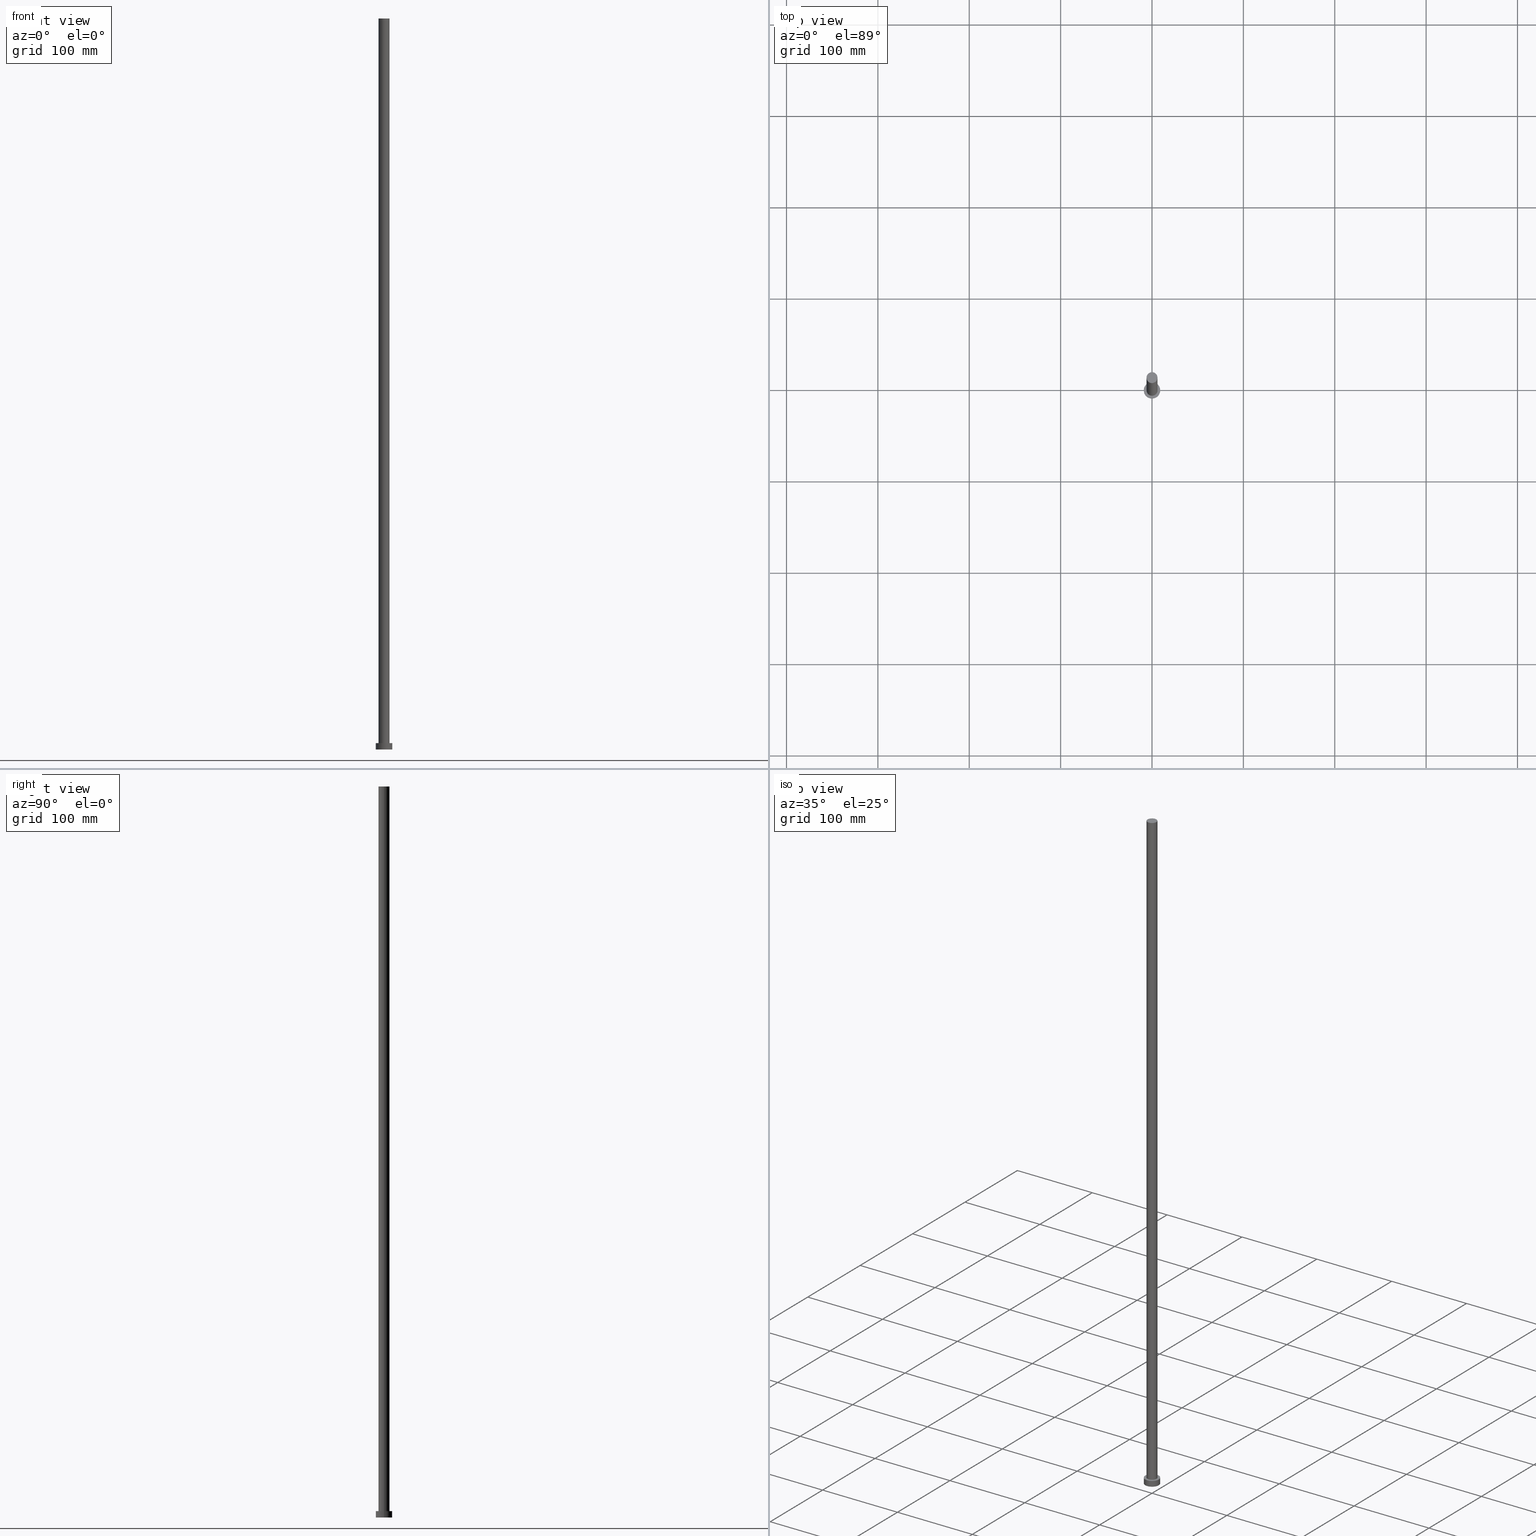
[diagram: canonical four-view strip — front | top / right | iso, engineering-drawing reading convention]
A machine part, canonical four-view strip (front | top / right | iso — engineering-drawing reading convention). The complete STEP part file that produces these views, byte-faithful:
ISO-10303-21;
HEADER;
FILE_DESCRIPTION (( 'STEP AP203' ),
    '1' );
FILE_NAME ('a4fc.STEP',
    '2023-02-12T11:04:41',
    ( '' ),
    ( '' ),
    'SwSTEP 2.0',
    'SolidWorks 2019',
    '' );
FILE_SCHEMA (( 'CONFIG_CONTROL_DESIGN' ));
ENDSEC;

DATA;
#1 = APPLICATION_PROTOCOL_DEFINITION ( 'international standard', 'config_control_design', 1994, #240 ) ;
#2 =( NAMED_UNIT ( * ) PLANE_ANGLE_UNIT ( ) SI_UNIT ( $, .RADIAN. ) );
#3 = ADVANCED_FACE ( 'NONE', ( #243 ), #124, .F. ) ;
#4 = UNCERTAINTY_MEASURE_WITH_UNIT (LENGTH_MEASURE( 1.000000000000000082E-05 ), #216, 'distance_accuracy_value', 'NONE');
#5 = DATE_AND_TIME ( #156, #23 ) ;
#6 = APPROVAL_DATE_TIME ( #178, #241 ) ;
#7 = ADVANCED_BREP_SHAPE_REPRESENTATION ( 'a4fc', ( #141, #84 ), #105 ) ;
#8 = CALENDAR_DATE ( 2023, 12, 2 ) ;
#9 = ORIENTED_EDGE ( 'NONE', *, *, #245, .T. ) ;
#10 = VECTOR ( 'NONE', #161, 1000.000000000000000 ) ;
#11 = VERTEX_POINT ( 'NONE', #95 ) ;
#12 = DIRECTION ( 'NONE',  ( 1.000000000000000000, 0.000000000000000000, 0.000000000000000000 ) ) ;
#13 = ORIENTED_EDGE ( 'NONE', *, *, #152, .F. ) ;
#14 = FACE_OUTER_BOUND ( 'NONE', #226, .T. ) ;
#15 = VERTEX_POINT ( 'NONE', #235 ) ;
#16 = CIRCLE ( 'NONE', #36, 9.000000000000000000 ) ;
#17 = LINE ( 'NONE', #247, #10 ) ;
#18 = VERTEX_POINT ( 'NONE', #91 ) ;
#19 = PERSON_AND_ORGANIZATION ( #75, #52 ) ;
#20 = CARTESIAN_POINT ( 'NONE',  ( -6.000000000000000888, 0.000000000000000000, 7.000000000000000000 ) ) ;
#21 = CLOSED_SHELL ( 'NONE', ( #186, #99, #196, #73, #3, #143, #106 ) ) ;
#22 = EDGE_CURVE ( 'NONE', #128, #83, #72, .T. ) ;
#23 = LOCAL_TIME ( 12, 4, 41.00000000000000000, #42 ) ;
#24 = MECHANICAL_CONTEXT ( 'NONE', #240, 'mechanical' ) ;
#25 = LINE ( 'NONE', #154, #254 ) ;
#26 = DIRECTION ( 'NONE',  ( 1.000000000000000000, 0.000000000000000000, -0.000000000000000000 ) ) ;
#27 = CYLINDRICAL_SURFACE ( 'NONE', #165, 9.000000000000000000 ) ;
#28 = AXIS2_PLACEMENT_3D ( 'NONE', #211, #255, #133 ) ;
#29 = APPROVAL_STATUS ( 'not_yet_approved' ) ;
#30 = SECURITY_CLASSIFICATION_LEVEL ( 'unclassified' ) ;
#31 = ORIENTED_EDGE ( 'NONE', *, *, #22, .T. ) ;
#32 = CIRCLE ( 'NONE', #28, 6.000000000000000888 ) ;
#33 = APPROVAL_PERSON_ORGANIZATION ( #57, #113, #61 ) ;
#34 = ORIENTED_EDGE ( 'NONE', *, *, #22, .F. ) ;
#35 = CC_DESIGN_DATE_AND_TIME_ASSIGNMENT ( #5, #195, ( #43 ) ) ;
#36 = AXIS2_PLACEMENT_3D ( 'NONE', #221, #82, #79 ) ;
#37 = DIRECTION ( 'NONE',  ( 1.000000000000000000, 0.000000000000000000, 0.000000000000000000 ) ) ;
#38 = DIRECTION ( 'NONE',  ( 0.000000000000000000, 0.000000000000000000, 1.000000000000000000 ) ) ;
#39 = COORDINATED_UNIVERSAL_TIME_OFFSET ( 1, 0, .AHEAD. ) ;
#40 = DIRECTION ( 'NONE',  ( 0.000000000000000000, 0.000000000000000000, 1.000000000000000000 ) ) ;
#41 = PLANE ( 'NONE',  #252 ) ;
#42 = COORDINATED_UNIVERSAL_TIME_OFFSET ( 1, 0, .AHEAD. ) ;
#43 = SECURITY_CLASSIFICATION ( '', '', #30 ) ;
#44 = CIRCLE ( 'NONE', #174, 6.000000000000000888 ) ;
#45 = APPLICATION_CONTEXT ( 'configuration controlled 3d designs of mechanical parts and assemblies' ) ;
#46 = EDGE_LOOP ( 'NONE', ( #90, #207 ) ) ;
#47 = EDGE_CURVE ( 'NONE', #205, #148, #71, .T. ) ;
#48 = ORIENTED_EDGE ( 'NONE', *, *, #47, .T. ) ;
#49 = LOCAL_TIME ( 12, 4, 41.00000000000000000, #219 ) ;
#50 = ORIENTED_EDGE ( 'NONE', *, *, #222, .F. ) ;
#51 = DIRECTION ( 'NONE',  ( 0.000000000000000000, 0.000000000000000000, 1.000000000000000000 ) ) ;
#52 = ORGANIZATION ( 'NEUR�EN�', 'NEUR�EN�', '' ) ;
#53 = DIRECTION ( 'NONE',  ( 1.000000000000000000, 0.000000000000000000, 0.000000000000000000 ) ) ;
#54 = DIRECTION ( 'NONE',  ( 1.000000000000000000, 0.000000000000000000, -0.000000000000000000 ) ) ;
#55 = CARTESIAN_POINT ( 'NONE',  ( -6.000000000000000888, 0.000000000000000000, 800.0000000000000000 ) ) ;
#56 = DIRECTION ( 'NONE',  ( 0.000000000000000000, 0.000000000000000000, 1.000000000000000000 ) ) ;
#57 = PERSON_AND_ORGANIZATION ( #75, #52 ) ;
#58 = DIRECTION ( 'NONE',  ( -0.000000000000000000, -0.000000000000000000, -1.000000000000000000 ) ) ;
#59 = PERSON_AND_ORGANIZATION_ROLE ( 'creator' ) ;
#60 = EDGE_CURVE ( 'NONE', #11, #146, #214, .T. ) ;
#61 = APPROVAL_ROLE ( '' ) ;
#62 = CALENDAR_DATE ( 2023, 12, 2 ) ;
#63 = DESIGN_CONTEXT ( 'detailed design', #45, 'design' ) ;
#64 = CARTESIAN_POINT ( 'NONE',  ( 0.000000000000000000, 0.000000000000000000, 800.0000000000000000 ) ) ;
#65 = EDGE_LOOP ( 'NONE', ( #246, #167 ) ) ;
#66 = PRODUCT_DEFINITION_SHAPE ( 'NONE', 'NONE',  #179 ) ;
#67 = AXIS2_PLACEMENT_3D ( 'NONE', #145, #202, #206 ) ;
#68 = ORIENTED_EDGE ( 'NONE', *, *, #210, .T. ) ;
#69 = DIRECTION ( 'NONE',  ( -1.000000000000000000, 0.000000000000000000, 0.000000000000000000 ) ) ;
#70 = ORIENTED_EDGE ( 'NONE', *, *, #47, .F. ) ;
#71 = CIRCLE ( 'NONE', #103, 9.000000000000000000 ) ;
#72 = LINE ( 'NONE', #55, #109 ) ;
#73 = ADVANCED_FACE ( 'NONE', ( #150, #112 ), #41, .T. ) ;
#74 = LOCAL_TIME ( 12, 4, 41.00000000000000000, #139 ) ;
#75 = PERSON ( 'NEUR�EN�', 'NEUR�EN�', 'NEUR�EN�', ('NEUR�EN�'), ('NEUR�EN�'), ('NEUR�EN�') ) ;
#76 = AXIS2_PLACEMENT_3D ( 'NONE', #201, #203, #54 ) ;
#77 = CC_DESIGN_PERSON_AND_ORGANIZATION_ASSIGNMENT ( #197, #135, ( #43 ) ) ;
#78 = DIRECTION ( 'NONE',  ( -0.000000000000000000, -0.000000000000000000, -1.000000000000000000 ) ) ;
#79 = DIRECTION ( 'NONE',  ( 1.000000000000000000, 0.000000000000000000, 0.000000000000000000 ) ) ;
#80 = EDGE_CURVE ( 'NONE', #83, #146, #169, .T. ) ;
#81 = SHAPE_DEFINITION_REPRESENTATION ( #66, #7 ) ;
#82 = DIRECTION ( 'NONE',  ( 0.000000000000000000, 0.000000000000000000, 1.000000000000000000 ) ) ;
#83 = VERTEX_POINT ( 'NONE', #20 ) ;
#84 = AXIS2_PLACEMENT_3D ( 'NONE', #114, #38, #110 ) ;
#85 = PRODUCT ( 'a4fc', 'a4fc', '', ( #24 ) ) ;
#86 = EDGE_LOOP ( 'NONE', ( #229, #249 ) ) ;
#87 = ORIENTED_EDGE ( 'NONE', *, *, #225, .F. ) ;
#88 = CYLINDRICAL_SURFACE ( 'NONE', #232, 9.000000000000000000 ) ;
#89 = AXIS2_PLACEMENT_3D ( 'NONE', #101, #121, #199 ) ;
#90 = ORIENTED_EDGE ( 'NONE', *, *, #162, .T. ) ;
#91 = CARTESIAN_POINT ( 'NONE',  ( -9.000000000000000000, 0.000000000000000000, 7.000000000000000000 ) ) ;
#92 = APPROVAL_STATUS ( 'not_yet_approved' ) ;
#93 = AXIS2_PLACEMENT_3D ( 'NONE', #155, #56, #217 ) ;
#94 = DIRECTION ( 'NONE',  ( -0.000000000000000000, -0.000000000000000000, -1.000000000000000000 ) ) ;
#95 = CARTESIAN_POINT ( 'NONE',  ( 6.000000000000000888, 7.347880794884120722E-16, 800.0000000000000000 ) ) ;
#96 = CARTESIAN_POINT ( 'NONE',  ( 0.000000000000000000, 0.000000000000000000, 7.000000000000000000 ) ) ;
#97 = PERSON_AND_ORGANIZATION ( #75, #52 ) ;
#98 = APPROVAL_DATE_TIME ( #159, #113 ) ;
#99 = ADVANCED_FACE ( 'NONE', ( #193 ), #27, .T. ) ;
#100 = DATE_AND_TIME ( #62, #118 ) ;
#101 = CARTESIAN_POINT ( 'NONE',  ( 0.000000000000000000, 0.000000000000000000, 800.0000000000000000 ) ) ;
#102 = ORIENTED_EDGE ( 'NONE', *, *, #60, .F. ) ;
#103 = AXIS2_PLACEMENT_3D ( 'NONE', #212, #40, #132 ) ;
#104 = DIRECTION ( 'NONE',  ( 1.000000000000000000, 0.000000000000000000, 0.000000000000000000 ) ) ;
#105 =( GEOMETRIC_REPRESENTATION_CONTEXT ( 3 ) GLOBAL_UNCERTAINTY_ASSIGNED_CONTEXT ( ( #4 ) ) GLOBAL_UNIT_ASSIGNED_CONTEXT ( ( #216, #2, #231 ) ) REPRESENTATION_CONTEXT ( 'NONE', 'WORKASPACE' ) );
#106 = ADVANCED_FACE ( 'NONE', ( #253 ), #137, .T. ) ;
#107 = DIRECTION ( 'NONE',  ( -1.000000000000000000, 0.000000000000000000, 0.000000000000000000 ) ) ;
#108 = CARTESIAN_POINT ( 'NONE',  ( 9.000000000000000000, 1.102182119232617714E-15, 0.000000000000000000 ) ) ;
#109 = VECTOR ( 'NONE', #94, 1000.000000000000000 ) ;
#110 = DIRECTION ( 'NONE',  ( 1.000000000000000000, 0.000000000000000000, 0.000000000000000000 ) ) ;
#111 = DATE_AND_TIME ( #173, #194 ) ;
#112 = FACE_OUTER_BOUND ( 'NONE', #86, .T. ) ;
#113 = APPROVAL ( #218, 'NEUR�EN�' ) ;
#114 = CARTESIAN_POINT ( 'NONE',  ( 0.000000000000000000, 0.000000000000000000, 0.000000000000000000 ) ) ;
#115 = CARTESIAN_POINT ( 'NONE',  ( 0.000000000000000000, 0.000000000000000000, 7.000000000000000000 ) ) ;
#116 = DIRECTION ( 'NONE',  ( -0.000000000000000000, -0.000000000000000000, -1.000000000000000000 ) ) ;
#117 = CARTESIAN_POINT ( 'NONE',  ( 6.000000000000000888, 7.347880794884120722E-16, 800.0000000000000000 ) ) ;
#118 = LOCAL_TIME ( 12, 4, 41.00000000000000000, #213 ) ;
#119 = EDGE_CURVE ( 'NONE', #148, #205, #16, .T. ) ;
#120 = PERSON_AND_ORGANIZATION_ROLE ( 'design_supplier' ) ;
#121 = DIRECTION ( 'NONE',  ( 0.000000000000000000, 0.000000000000000000, 1.000000000000000000 ) ) ;
#122 = CC_DESIGN_PERSON_AND_ORGANIZATION_ASSIGNMENT ( #237, #59, ( #151 ) ) ;
#123 = AXIS2_PLACEMENT_3D ( 'NONE', #147, #51, #37 ) ;
#124 = PLANE ( 'NONE',  #76 ) ;
#125 = ORIENTED_EDGE ( 'NONE', *, *, #176, .T. ) ;
#126 = EDGE_LOOP ( 'NONE', ( #13, #125, #184, #187 ) ) ;
#127 = CC_DESIGN_PERSON_AND_ORGANIZATION_ASSIGNMENT ( #198, #120, ( #151 ) ) ;
#128 = VERTEX_POINT ( 'NONE', #239 ) ;
#129 = CIRCLE ( 'NONE', #123, 6.000000000000000888 ) ;
#130 = PERSON_AND_ORGANIZATION_ROLE ( 'creator' ) ;
#131 = CC_DESIGN_PERSON_AND_ORGANIZATION_ASSIGNMENT ( #171, #130, ( #179 ) ) ;
#132 = DIRECTION ( 'NONE',  ( 1.000000000000000000, 0.000000000000000000, 0.000000000000000000 ) ) ;
#133 = DIRECTION ( 'NONE',  ( 1.000000000000000000, 0.000000000000000000, 0.000000000000000000 ) ) ;
#134 = DIRECTION ( 'NONE',  ( 0.000000000000000000, 0.000000000000000000, 1.000000000000000000 ) ) ;
#135 = PERSON_AND_ORGANIZATION_ROLE ( 'classification_officer' ) ;
#136 = APPROVAL_ROLE ( '' ) ;
#137 = PLANE ( 'NONE',  #89 ) ;
#138 = APPROVAL_PERSON_ORGANIZATION ( #97, #241, #136 ) ;
#139 = COORDINATED_UNIVERSAL_TIME_OFFSET ( 1, 0, .AHEAD. ) ;
#140 = VECTOR ( 'NONE', #58, 1000.000000000000000 ) ;
#141 = MANIFOLD_SOLID_BREP ( 'P�idat vysunut�m3', #21 ) ;
#142 = ORIENTED_EDGE ( 'NONE', *, *, #162, .F. ) ;
#143 = ADVANCED_FACE ( 'NONE', ( #238 ), #223, .T. ) ;
#144 = EDGE_LOOP ( 'NONE', ( #70, #163 ) ) ;
#145 = CARTESIAN_POINT ( 'NONE',  ( 0.000000000000000000, 0.000000000000000000, 800.0000000000000000 ) ) ;
#146 = VERTEX_POINT ( 'NONE', #208 ) ;
#147 = CARTESIAN_POINT ( 'NONE',  ( 0.000000000000000000, 0.000000000000000000, 7.000000000000000000 ) ) ;
#148 = VERTEX_POINT ( 'NONE', #108 ) ;
#149 = APPLICATION_PROTOCOL_DEFINITION ( 'international standard', 'config_control_design', 1994, #45 ) ;
#150 = FACE_BOUND ( 'NONE', #65, .T. ) ;
#151 = PRODUCT_DEFINITION_FORMATION_WITH_SPECIFIED_SOURCE ( 'LIBOVOLN�', '', #85, .NOT_KNOWN. ) ;
#152 = EDGE_CURVE ( 'NONE', #15, #18, #180, .T. ) ;
#153 = AXIS2_PLACEMENT_3D ( 'NONE', #228, #200, #104 ) ;
#154 = CARTESIAN_POINT ( 'NONE',  ( -9.000000000000000000, 0.000000000000000000, 7.000000000000000000 ) ) ;
#155 = CARTESIAN_POINT ( 'NONE',  ( 0.000000000000000000, 0.000000000000000000, 7.000000000000000000 ) ) ;
#156 = CALENDAR_DATE ( 2023, 12, 2 ) ;
#157 = CIRCLE ( 'NONE', #160, 9.000000000000000000 ) ;
#158 = CC_DESIGN_PERSON_AND_ORGANIZATION_ASSIGNMENT ( #190, #209, ( #85 ) ) ;
#159 = DATE_AND_TIME ( #8, #74 ) ;
#160 = AXIS2_PLACEMENT_3D ( 'NONE', #215, #175, #53 ) ;
#161 = DIRECTION ( 'NONE',  ( -0.000000000000000000, -0.000000000000000000, -1.000000000000000000 ) ) ;
#162 = EDGE_CURVE ( 'NONE', #128, #11, #44, .T. ) ;
#163 = ORIENTED_EDGE ( 'NONE', *, *, #119, .F. ) ;
#164 = EDGE_LOOP ( 'NONE', ( #102, #142, #31, #189 ) ) ;
#165 = AXIS2_PLACEMENT_3D ( 'NONE', #96, #78, #170 ) ;
#166 = CARTESIAN_POINT ( 'NONE',  ( 0.000000000000000000, 0.000000000000000000, 7.000000000000000000 ) ) ;
#167 = ORIENTED_EDGE ( 'NONE', *, *, #210, .F. ) ;
#168 = DIRECTION ( 'NONE',  ( -0.000000000000000000, -0.000000000000000000, -1.000000000000000000 ) ) ;
#169 = CIRCLE ( 'NONE', #93, 6.000000000000000888 ) ;
#170 = DIRECTION ( 'NONE',  ( -1.000000000000000000, 0.000000000000000000, 0.000000000000000000 ) ) ;
#171 = PERSON_AND_ORGANIZATION ( #75, #52 ) ;
#172 = CC_DESIGN_SECURITY_CLASSIFICATION ( #43, ( #151 ) ) ;
#173 = CALENDAR_DATE ( 2023, 12, 2 ) ;
#174 = AXIS2_PLACEMENT_3D ( 'NONE', #183, #188, #12 ) ;
#175 = DIRECTION ( 'NONE',  ( 0.000000000000000000, 0.000000000000000000, 1.000000000000000000 ) ) ;
#176 = EDGE_CURVE ( 'NONE', #15, #148, #17, .T. ) ;
#177 = CC_DESIGN_APPROVAL ( #241, ( #43 ) ) ;
#178 = DATE_AND_TIME ( #181, #49 ) ;
#179 = PRODUCT_DEFINITION ( 'NEZN�M�', '', #151, #63 ) ;
#180 = CIRCLE ( 'NONE', #153, 9.000000000000000000 ) ;
#181 = CALENDAR_DATE ( 2023, 12, 2 ) ;
#182 = ORIENTED_EDGE ( 'NONE', *, *, #60, .T. ) ;
#183 = CARTESIAN_POINT ( 'NONE',  ( 0.000000000000000000, 0.000000000000000000, 800.0000000000000000 ) ) ;
#184 = ORIENTED_EDGE ( 'NONE', *, *, #119, .T. ) ;
#185 = APPROVAL_PERSON_ORGANIZATION ( #19, #234, #233 ) ;
#186 = ADVANCED_FACE ( 'NONE', ( #244 ), #230, .T. ) ;
#187 = ORIENTED_EDGE ( 'NONE', *, *, #245, .F. ) ;
#188 = DIRECTION ( 'NONE',  ( 0.000000000000000000, 0.000000000000000000, 1.000000000000000000 ) ) ;
#189 = ORIENTED_EDGE ( 'NONE', *, *, #80, .T. ) ;
#190 = PERSON_AND_ORGANIZATION ( #75, #52 ) ;
#191 = APPROVAL_DATE_TIME ( #111, #234 ) ;
#192 = PRODUCT_RELATED_PRODUCT_CATEGORY ( 'detail', '', ( #85 ) ) ;
#193 = FACE_OUTER_BOUND ( 'NONE', #126, .T. ) ;
#194 = LOCAL_TIME ( 12, 4, 41.00000000000000000, #39 ) ;
#195 = DATE_TIME_ROLE ( 'classification_date' ) ;
#196 = ADVANCED_FACE ( 'NONE', ( #14 ), #88, .T. ) ;
#197 = PERSON_AND_ORGANIZATION ( #75, #52 ) ;
#198 = PERSON_AND_ORGANIZATION ( #75, #52 ) ;
#199 = DIRECTION ( 'NONE',  ( 1.000000000000000000, 0.000000000000000000, -0.000000000000000000 ) ) ;
#200 = DIRECTION ( 'NONE',  ( 0.000000000000000000, 0.000000000000000000, 1.000000000000000000 ) ) ;
#201 = CARTESIAN_POINT ( 'NONE',  ( 0.000000000000000000, 0.000000000000000000, 0.000000000000000000 ) ) ;
#202 = DIRECTION ( 'NONE',  ( -0.000000000000000000, -0.000000000000000000, -1.000000000000000000 ) ) ;
#203 = DIRECTION ( 'NONE',  ( 0.000000000000000000, 0.000000000000000000, 1.000000000000000000 ) ) ;
#204 = CC_DESIGN_DATE_AND_TIME_ASSIGNMENT ( #100, #236, ( #179 ) ) ;
#205 = VERTEX_POINT ( 'NONE', #250 ) ;
#206 = DIRECTION ( 'NONE',  ( -1.000000000000000000, 0.000000000000000000, 0.000000000000000000 ) ) ;
#207 = ORIENTED_EDGE ( 'NONE', *, *, #222, .T. ) ;
#208 = CARTESIAN_POINT ( 'NONE',  ( 6.000000000000000888, 7.347880794884120722E-16, 7.000000000000000000 ) ) ;
#209 = PERSON_AND_ORGANIZATION_ROLE ( 'design_owner' ) ;
#210 = EDGE_CURVE ( 'NONE', #146, #83, #129, .T. ) ;
#211 = CARTESIAN_POINT ( 'NONE',  ( 0.000000000000000000, 0.000000000000000000, 800.0000000000000000 ) ) ;
#212 = CARTESIAN_POINT ( 'NONE',  ( 0.000000000000000000, 0.000000000000000000, 0.000000000000000000 ) ) ;
#213 = COORDINATED_UNIVERSAL_TIME_OFFSET ( 1, 0, .AHEAD. ) ;
#214 = LINE ( 'NONE', #117, #140 ) ;
#215 = CARTESIAN_POINT ( 'NONE',  ( 0.000000000000000000, 0.000000000000000000, 7.000000000000000000 ) ) ;
#216 =( LENGTH_UNIT ( ) NAMED_UNIT ( * ) SI_UNIT ( .MILLI., .METRE. ) );
#217 = DIRECTION ( 'NONE',  ( 1.000000000000000000, 0.000000000000000000, 0.000000000000000000 ) ) ;
#218 = APPROVAL_STATUS ( 'not_yet_approved' ) ;
#219 = COORDINATED_UNIVERSAL_TIME_OFFSET ( 1, 0, .AHEAD. ) ;
#220 = CC_DESIGN_APPROVAL ( #113, ( #151 ) ) ;
#221 = CARTESIAN_POINT ( 'NONE',  ( 0.000000000000000000, 0.000000000000000000, 0.000000000000000000 ) ) ;
#222 = EDGE_CURVE ( 'NONE', #11, #128, #32, .T. ) ;
#223 = CYLINDRICAL_SURFACE ( 'NONE', #67, 6.000000000000000888 ) ;
#224 = ORIENTED_EDGE ( 'NONE', *, *, #176, .F. ) ;
#225 = EDGE_CURVE ( 'NONE', #18, #15, #157, .T. ) ;
#226 = EDGE_LOOP ( 'NONE', ( #224, #87, #9, #48 ) ) ;
#227 = CC_DESIGN_APPROVAL ( #234, ( #179 ) ) ;
#228 = CARTESIAN_POINT ( 'NONE',  ( 0.000000000000000000, 0.000000000000000000, 7.000000000000000000 ) ) ;
#229 = ORIENTED_EDGE ( 'NONE', *, *, #225, .T. ) ;
#230 = CYLINDRICAL_SURFACE ( 'NONE', #242, 6.000000000000000888 ) ;
#231 =( NAMED_UNIT ( * ) SI_UNIT ( $, .STERADIAN. ) SOLID_ANGLE_UNIT ( ) );
#232 = AXIS2_PLACEMENT_3D ( 'NONE', #166, #248, #69 ) ;
#233 = APPROVAL_ROLE ( '' ) ;
#234 = APPROVAL ( #92, 'NEUR�EN�' ) ;
#235 = CARTESIAN_POINT ( 'NONE',  ( 9.000000000000000000, 1.102182119232617714E-15, 7.000000000000000000 ) ) ;
#236 = DATE_TIME_ROLE ( 'creation_date' ) ;
#237 = PERSON_AND_ORGANIZATION ( #75, #52 ) ;
#238 = FACE_OUTER_BOUND ( 'NONE', #164, .T. ) ;
#239 = CARTESIAN_POINT ( 'NONE',  ( -6.000000000000000888, 0.000000000000000000, 800.0000000000000000 ) ) ;
#240 = APPLICATION_CONTEXT ( 'configuration controlled 3d designs of mechanical parts and assemblies' ) ;
#241 = APPROVAL ( #29, 'NEUR�EN�' ) ;
#242 = AXIS2_PLACEMENT_3D ( 'NONE', #64, #168, #107 ) ;
#243 = FACE_OUTER_BOUND ( 'NONE', #144, .T. ) ;
#244 = FACE_OUTER_BOUND ( 'NONE', #251, .T. ) ;
#245 = EDGE_CURVE ( 'NONE', #18, #205, #25, .T. ) ;
#246 = ORIENTED_EDGE ( 'NONE', *, *, #80, .F. ) ;
#247 = CARTESIAN_POINT ( 'NONE',  ( 9.000000000000000000, 1.102182119232617714E-15, 7.000000000000000000 ) ) ;
#248 = DIRECTION ( 'NONE',  ( -0.000000000000000000, -0.000000000000000000, -1.000000000000000000 ) ) ;
#249 = ORIENTED_EDGE ( 'NONE', *, *, #152, .T. ) ;
#250 = CARTESIAN_POINT ( 'NONE',  ( -9.000000000000000000, 0.000000000000000000, 0.000000000000000000 ) ) ;
#251 = EDGE_LOOP ( 'NONE', ( #50, #182, #68, #34 ) ) ;
#252 = AXIS2_PLACEMENT_3D ( 'NONE', #115, #134, #26 ) ;
#253 = FACE_OUTER_BOUND ( 'NONE', #46, .T. ) ;
#254 = VECTOR ( 'NONE', #116, 1000.000000000000000 ) ;
#255 = DIRECTION ( 'NONE',  ( 0.000000000000000000, 0.000000000000000000, 1.000000000000000000 ) ) ;
ENDSEC;
END-ISO-10303-21;
